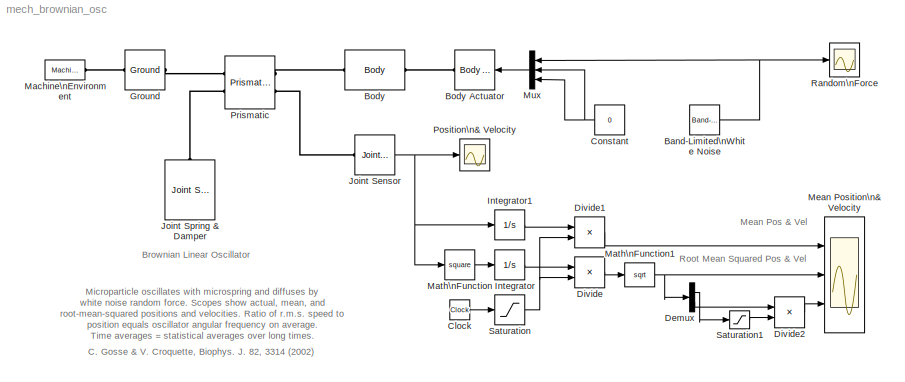
MODEL mech_brownian_osc
KIND model
CONFIG InitFcn = % Define system constants once per simulation\n\nbrownian.spring.stiffness = k;\nbrownian.spring.damping = b;\nbrownian.spring.offset = 0;\n\nbrownian.particle.mass = m;\nbrownian.particle.inertia = (2/5)*m*r^2*eye(3);\n\nbrownian.noise.power = g;\nbrownian.noise.sample = 2*pi*sqrt(m/k)/100;\nbrownian.noise.seed = 54321;\n\nbrownian.dynamics.mintime = 0.01;\nbrownian.dynamics.minlength = sqrt(g/2/...<+10ch>
CONFIG PreLoadFcn = % Define primitive constants once\n\nk = 1e-7; b = 12*pi*1e-9; m = 1e-7/16/pi^2; r = 5e-6;\nkB = 1.3806503e-23; T = 290; g = 2*kB*T*b;
BLOCK [Reference] Band-Limited\nWhite Noise  REF=simulink/Sources/Band-Limited\nWhite Noise
  Cov = [brownian.noise.power]
  FunctionWithSeparateData = off
  Ports = [0, 1]
  RTWMemSecDataConstants = Inherit from model
  RTWMemSecDataInternal = Inherit from model
  RTWMemSecDataParameters = Inherit from model
  RTWMemSecFuncExecute = Inherit from model
  RTWMemSecFuncInitTerm = Inherit from model
  ShowPortLabels = FromPortIcon
  SourceBlock = simulink/Sources/Band-Limited\nWhite Noise
  SourceType = Band-Limited White Noise.
  SystemSampleTime = -1
  Ts = brownian.noise.sample
  VectorParams1D = on
  seed = brownian.noise.seed
BLOCK [Reference] Body  REF=mblibv1/Bodies/Body
  AttachedToCS = 1
  BodyColor = [0.5 0.5 0.5]
  CG = Left$CG$[0 0 0]$WORLD$WORLD$m$[0 0 0]$Euler X-Y-Z$deg$WORLD$false
  CGPos = [0 0 0]
  CGRot = [0 0 0]
  CS0Pos = []
  CS0Rot = []
  CS10Pos = []
  CS10Rot = []
  CS11Pos = []
  CS11Rot = []
  CS12Pos = []
  CS12Rot = []
  CS13Pos = []
  CS13Rot = []
  CS14Pos = []
  CS14Rot = []
  CS15Pos = []
  CS15Rot = []
  CS16Pos = []
  CS16Rot = []
  CS17Pos = []
  CS17Rot = []
  CS18Pos = []
  CS18Rot = []
  CS19Pos = []
  CS19Rot = []
  CS1Pos = [0 0 0]
  CS1Rot = [0 0 0]
  CS20Pos = []
  CS20Rot = []
  CS2Pos = [0 0 0]
  CS2Rot = [0 0 0]
  CS3Pos = []
  CS3Rot = []
  CS4Pos = []
  CS4Rot = []
  CS5Pos = []
  CS5Rot = []
  CS6Pos = []
  CS6Rot = []
  CS7Pos = []
  CS7Rot = []
  CS8Pos = []
  CS8Rot = []
  CS9Pos = []
  CS9Rot = []
  ClassName = Body
  Density = 1
  DensityUnits = kg/m^3
  DensityUse = false
  DialogClass = MechanicalBodyBlock
  DialogController = MECH.DynMechDlgSource
  GraphicsMode = 1
  GraphicsObj = []
  Inertia = brownian.particle.inertia
  InertiaUnits = kg*m^2
  LConnTagsString = CS1
  LeftPortType = workingframe
  Mass = brownian.particle.mass
  MassUnits = kg
  PhysicalDomain = mechanical
  Ports = [0, 0, 0, 0, 0, 1, 1]
  RConnTagsString = CS2
  RightPortType = workingframe
  Shape = Cylinder
  ShapeDims = [1 1]
  ShapeUnits = m
  ShapeUse = false
  SourceBlock = mblibv1/Bodies/Body
  SourceType = Body
  SubClassName = Unknown
  WorkingFrames = Left$CS1$[0 0 0]$CG$CG$m$[0 0 0]$Euler X-Y-Z$deg$WORLD$true#Right$CS2$[0 0 0]$CG$CG$m$[0 0 0]$Euler X-Y-Z$deg$WORLD$true
BLOCK [Reference] Body Actuator  REF=mblibv1/Sensors & \nActuators/Body Actuator
  AccelerationUnits = m/s^2
  ActiveIO = on
  ActuationStyle = Force
  Angle = off
  AngleUnits = deg
  ArcAccelerationUnits = deg/s^2
  ArcVelocityUnits = deg/s
  ClassName = BodyActuatorForceTorque
  CoordPosition = on
  CoordPositionUnits = m
  DialogClass = MechanicalActuatorBlock
  DialogController = MECH.DynMechDlgSource
  Force = on
  ForceUnits = N
  FunctionWithSeparateData = off
  PhysicalDomain = Mechanical
  PortType = blob
  Ports = [1, 0, 0, 0, 0, 0, 1]
  RTWMemSecDataConstants = Inherit from model
  RTWMemSecDataInternal = Inherit from model
  RTWMemSecDataParameters = Inherit from model
  RTWMemSecFuncExecute = Inherit from model
  RTWMemSecFuncInitTerm = Inherit from model
  ReferenceFrame = Absolute (World)
  ShowPortLabels = FromPortIcon
  SourceBlock = mblibv1/Sensors & \nActuators/Body Actuator
  SourceType = Body Actuator
  SystemSampleTime = -1
  Torque = off
  TorqueUnits = N*m
  VelocityUnits = m/s
  Width = 3
BLOCK [Clock] Clock
  Decimation = 10
  DisplayTime = on
BLOCK [Constant] Constant
  OutDataType = sfix(16)
  OutScaling = 2^0
  Value = 0
BLOCK [Demux] Demux
  DisplayOption = bar
  Outputs = 2
  Ports = [1, 2]
BLOCK [Product] Divide
  InputSameDT = off
  Inputs = */
  OutDataType = sfix(16)
  OutDataTypeMode = Inherit via internal rule
  OutDataTypeStr = Inherit: Inherit via internal rule
  OutScaling = 2^-10
  Ports = [2, 1]
  RndMeth = Floor
  SaturateOnIntegerOverflow = off
BLOCK [Product] Divide1
  InputSameDT = off
  Inputs = */
  OutDataType = sfix(16)
  OutDataTypeMode = Inherit via internal rule
  OutDataTypeStr = Inherit: Inherit via internal rule
  OutScaling = 2^-10
  Ports = [2, 1]
  RndMeth = Floor
  SaturateOnIntegerOverflow = off
BLOCK [Product] Divide2
  InputSameDT = off
  Inputs = */
  OutDataType = sfix(16)
  OutDataTypeMode = Inherit via internal rule
  OutDataTypeStr = Inherit: Inherit via internal rule
  OutScaling = 2^-10
  Ports = [2, 1]
  RndMeth = Floor
  SaturateOnIntegerOverflow = off
BLOCK [Reference] Ground  REF=mblibv1/Bodies/Ground
  ClassName = Ground
  CoordPosition = [0 0 0]
  CoordPositionUnits = m
  DialogClass = GroundBlock
  DialogController = MECH.DynMechDlgSource
  FunctionWithSeparateData = off
  LeftPortType = env
  MachineId = [0 0]
  PhysicalDomain = Mechanical
  Ports = [0, 0, 0, 0, 0, 1, 1]
  RTWMemSecDataConstants = Inherit from model
  RTWMemSecDataInternal = Inherit from model
  RTWMemSecDataParameters = Inherit from model
  RTWMemSecFuncExecute = Inherit from model
  RTWMemSecFuncInitTerm = Inherit from model
  RightPortType = workingframe
  ShowEnvPort = on
  ShowPortLabels = FromPortIcon
  SourceBlock = mblibv1/Bodies/Ground
  SourceType = Ground
  StateVectorMgrId = -1
  SystemSampleTime = -1
  UserData = DataTag0
  UserDataPersistent = on
BLOCK [Integrator] Integrator
  Ports = [1, 1]
  ZeroCross = off
BLOCK [Integrator] Integrator1
  Ports = [1, 1]
  ZeroCross = off
BLOCK [Reference] Joint Sensor  REF=mblibv1/Sensors & \nActuators/Joint Sensor
  Acceleration = off
  AccelerationUnits = m/s^2
  ActiveIO = on
  Angle = on
  AngleUnits = deg
  ArcAcceleration = off
  ArcAccelerationUnits = deg/s^2
  ArcVelocity = off
  ArcVelocityUnits = deg/s
  ClassName = JointSensor
  CoordPosition = on
  CoordPositionUnits = m
  DialogClass = MechanicalSensorBlock
  DialogController = MECH.DynMechDlgSource
  Force = off
  ForceUnits = N
  FunctionWithSeparateData = off
  Muxed = on
  OutputVector = [1]
  PhysicalDomain = Mechanical
  PortType = blob
  Ports = [0, 1, 0, 0, 0, 1]
  Pose = off
  Primitive = P1
  Quaternion = on
  QuaternionDDT = off
  QuaternionDT = off
  QuaternionUnits = off
  RTWMemSecDataConstants = Inherit from model
  RTWMemSecDataInternal = Inherit from model
  RTWMemSecDataParameters = Inherit from model
  RTWMemSecFuncExecute = Inherit from model
  RTWMemSecFuncInitTerm = Inherit from model
  ReactionForce = off
  ReactionForceUnits = N
  ReactionMoment = off
  ReactionMomentUnits = N*m
  ReactionReferenceFrame = Absolute (World)
  ReactionSensedSide = Base
  ReferenceFrame = Absolute (World)
  ShowPortLabels = FromPortIcon
  SourceBlock = mblibv1/Sensors & \nActuators/Joint Sensor
  SourceType = Joint Sensor
  SystemSampleTime = -1
  Torque = off
  TorqueUnits = N*m
  Velocity = on
  VelocityUnits = m/s
  Width = 2
BLOCK [Reference] Joint Spring & Damper  REF=mblibv1/Force \nElements/Joint Spring & Damper
  ClassName = JointSpringDamper
  DialogClass = JointSpringDamper
  DialogController = MECH.DynMechDlgSource
  FunctionWithSeparateData = off
  JFEParameters = P1$true$brownian.spring.stiffness$brownian.spring.damping$brownian.spring.offset$m$m/s$N$deg$deg/s$N*m#P2$false$0$0$0$m$m/s$N$deg$deg/s$N*m#P3$false$0$0$0$m$m/s$N$deg$deg/s$N*m#R1$false$0$0$0$m$m/s$N$deg$deg/s$N*m#R2$false$0$0$0$m$m/s$N$deg$deg/s$N*m#R3$false$0$0$0$m$m/s$N$deg$deg/s$N*m#S$false$0$0$0$m$m/s$N$deg$deg/s$N*m
  Ports = [0, 0, 0, 0, 0, 1]
  RTWMemSecDataConstants = Inherit from model
  RTWMemSecDataInternal = Inherit from model
  RTWMemSecDataParameters = Inherit from model
  RTWMemSecFuncExecute = Inherit from model
  RTWMemSecFuncInitTerm = Inherit from model
  ShowPortLabels = FromPortIcon
  SourceBlock = mblibv1/Force \nElements/Joint Spring & Damper
  SourceType = Joint Spring & Damper
  SystemSampleTime = -1
BLOCK [Reference] Machine\nEnvironment  REF=mblibv1/Bodies/Machine\nEnvironment
  AnalysisType = Forward dynamics
  AngularAssemblyTolerance = 1e-3
  AngularAssemblyToleranceUnits = rad
  ClassName = Environment
  ConstraintAbsTolerance = 1e-4
  ConstraintRelTolerance = 1e-4
  ConstraintSolverType = Stabilizing
  DialogController = MECH.DialogSource
  DialogTemplateClass = MECH.MachineEnvironment
  Dimensionality = Auto-detect
  FunctionWithSeparateData = off
  Gravity = [0 -9.81 0]
  GravityAsSignal = off
  GravityUnits = m/s^2
  LinearAssemblyTolerance = 1e-9
  LinearAssemblyToleranceUnits = m
  PerturbationSize = 1e-5
  PhysicalDomain = Mechanical
  PortType = env
  Ports = [0, 0, 0, 0, 0, 0, 1]
  RTWMemSecDataConstants = Inherit from model
  RTWMemSecDataInternal = Inherit from model
  RTWMemSecDataParameters = Inherit from model
  RTWMemSecFuncExecute = Inherit from model
  RTWMemSecFuncInitTerm = Inherit from model
  RedundancyAnalysisTolerance = 1e-14
  RedundancyAnalysisToleranceType = Automatically select tolerance
  ShowPortLabels = FromPortIcon
  SourceBlock = mblibv1/Bodies/Machine\nEnvironment
  SourceType = Machine Environment
  StatePerturbationType = Fixed
  SyncWhenCopied = off
  SystemSampleTime = -1
  Tag = Factory ground
  UseRobustSingularityHandling = off
  VisualizeMachine = on
BLOCK [Math] Math\nFunction
  Operator = square
  OutDataType = sfix(16)
  OutScaling = 2^0
  Ports = [1, 1]
BLOCK [Math] Math\nFunction1
  Operator = sqrt
  OutDataType = sfix(16)
  OutScaling = 2^0
  Ports = [1, 1]
BLOCK [Scope] Mean Position\n& Velocity
  DataFormat = StructureWithTime
  Floating = off
  LimitDataPoints = off
  NumInputPorts = 3
  Ports = [3]
  SampleTime = 0
  SaveName = ScopeData2
  TimeRange = 100
  YMax = 2e-007~4e-006~20
  YMin = -2e-007~0~0
  ZoomMode = yonly
BLOCK [Mux] Mux
  DisplayOption = bar
  Inputs = 3
  Ports = [3, 1]
BLOCK [Scope] Position\n& Velocity
  DataFormat = StructureWithTime
  Floating = off
  LimitDataPoints = off
  NumInputPorts = 1
  Ports = [1]
  SampleTime = 0
  SaveName = ScopeData3
  TimeRange = 25
  YMax = 1e-005
  YMin = -1e-005
BLOCK [Reference] Prismatic  REF=mblibv1/Joints/Prismatic
  ClassName = Joint
  CutJoint = off
  DialogClass = JointBlock
  DialogController = MECH.DynMechDlgSource
  LConnTagsString = __newl0|SA1
  LeftPortType = blob
  MarkAsCut = off
  NumSAPorts = 2
  P1Axis = [1 0 0]
  PhysicalDomain = mechanical
  Ports = [0, 0, 0, 0, 0, 2, 2]
  PrimitiveProps = P1$World$[1 0 0]$prismatic
  Primitives = prismatic
  RConnTagsString = __newr0|SA1
  RightPortType = blob
  SourceBlock = mblibv1/Joints/Prismatic
  SourceType = Prismatic
  SubClassName = Unknown
BLOCK [Scope] Random\nForce
  DataFormat = StructureWithTime
  Floating = off
  LimitDataPoints = off
  NumInputPorts = 1
  Ports = [1]
  SampleTime = 0
  TimeRange = 25
  YMax = 1e-012
  YMin = -1e-012
BLOCK [Saturate] Saturation
  LowerLimit = brownian.dynamics.mintime
  UpperLimit = inf
  ZeroCross = off
BLOCK [Saturate] Saturation1
  LowerLimit = brownian.dynamics.minlength
  UpperLimit = inf
  ZeroCross = off
ANNOTATION (root): Brownian Linear Oscillator
ANNOTATION (root): C. Gosse & V. Croquette, Biophys. J. 82, 3314 (2002)
ANNOTATION (root): Mean Pos & Vel
ANNOTATION (root): Microparticle oscillates with microspring and diffuses by\nwhite noise random force. Scopes show actual, mean, and\nroot-mean-squared positions and velocities. Ratio of r.m.s. speed to\nposition equals oscillator angular frequency on average.\nTime averages = statistical averages over long times.
ANNOTATION (root): Root Mean Squared Pos & Vel
NET Band-Limited\nWhite Noise:1 -> Mux:1, Random\nForce:1
LINE Clock:1 -> Saturation:1
NET Constant:1 -> Mux:2, Mux:3
LINE Demux:1 -> Saturation1:1
LINE Demux:2 -> Divide2:1
LINE Divide1:1 -> Mean Position\n& Velocity:1
LINE Divide2:1 -> Mean Position\n& Velocity:3
LINE Divide:1 -> Math\nFunction1:1
LINE Integrator1:1 -> Divide1:1
LINE Integrator:1 -> Divide:1
NET Joint Sensor:1 -> Integrator1:1, Math\nFunction:1, Position\n& Velocity:1
NET Math\nFunction1:1 -> Demux:1, Mean Position\n& Velocity:2
LINE Math\nFunction:1 -> Integrator:1
LINE Mux:1 -> Body Actuator:1
LINE Saturation1:1 -> Divide2:2
NET Saturation:1 -> Divide1:2, Divide:2
PLINE Body Actuator:RConn1 -- Body:RConn1
PLINE Body:LConn1 -- Prismatic:RConn1
PLINE Ground:LConn1 -- Machine\nEnvironment:RConn1
PLINE Ground:RConn1 -- Prismatic:LConn1
PLINE Joint Sensor:LConn1 -- Prismatic:RConn2
PLINE Joint Spring & Damper:LConn1 -- Prismatic:LConn2
note: NET lines group one-source signal fan-out (src -> all destinations, sorted); 1:1 wires keep LINE
